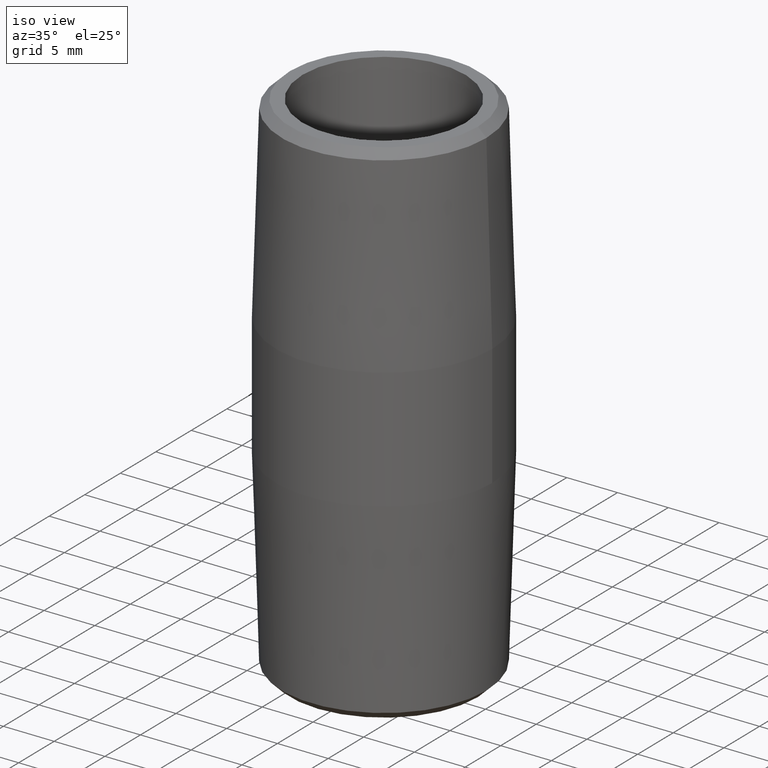
[diagram: clean part render]
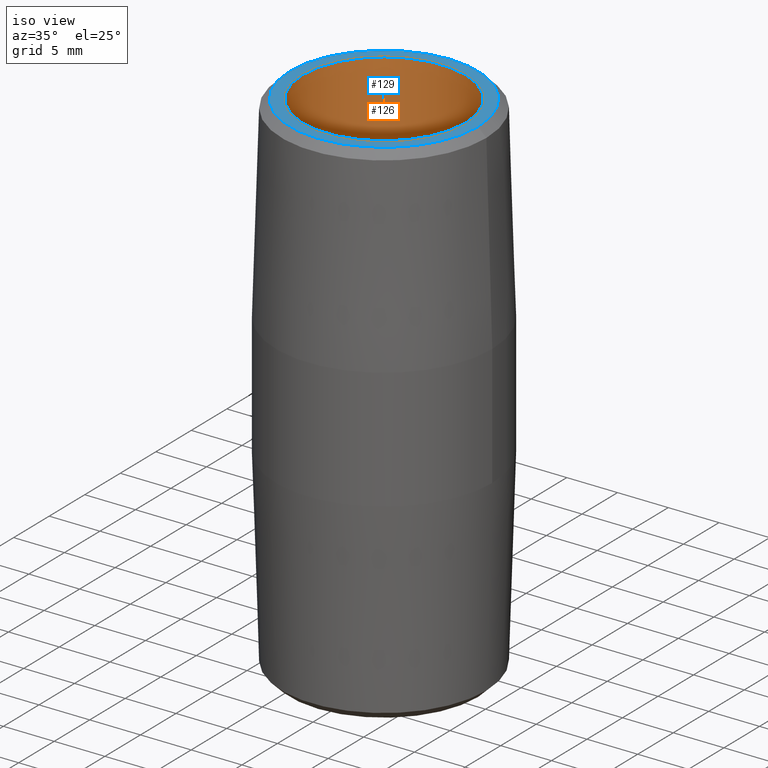
[diagram: same view with the hole feature highlighted: cylindrical wall and planar end face, labeled with their STEP entity ids]
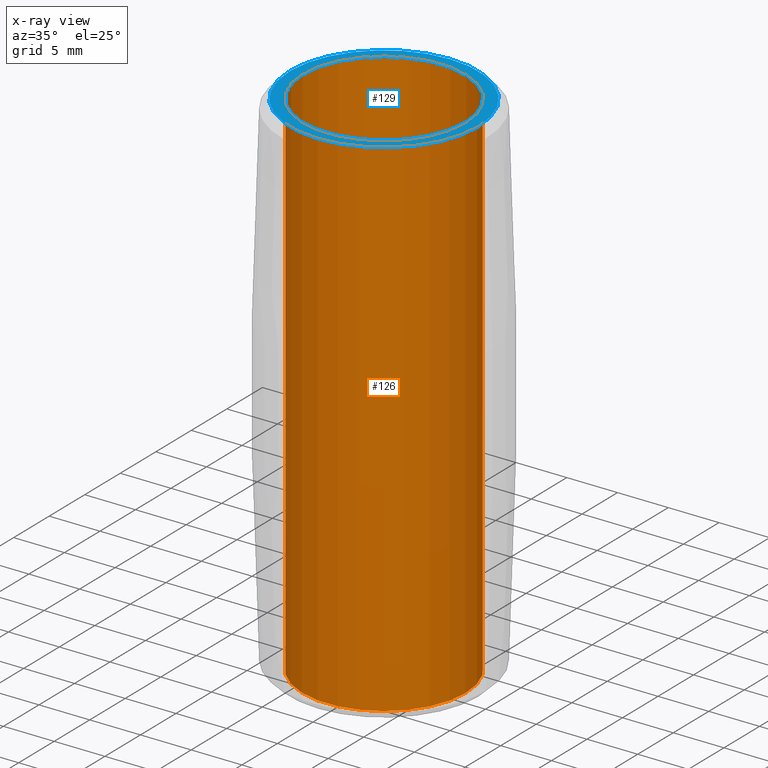
[diagram: x-ray of the same camera — body ghosted, the hole faces saturated]
A machine part, iso view. The highlighted faces form one hole feature of diameter 16.0528 mm: the cylindrical wall (entity #126, orange) and its adjacent planar end face (entity #129, blue) — they share a circular edge in the B-rep.
The next image is the same camera in x-ray (body ghosted, the hole faces saturated) — the bore reads through the body.
Wall:
#22=FACE_OUTER_BOUND('',#30,.T.);
#30=EDGE_LOOP('',(#85,#86,#87,#88));
#40=LINE('',#218,#46);
#46=VECTOR('',#177,0.316);
#52=CIRCLE('',#155,0.316);
#53=CIRCLE('',#156,0.316);
#61=VERTEX_POINT('',#215);
#62=VERTEX_POINT('',#217);
#70=EDGE_CURVE('',#61,#61,#52,.T.);
#71=EDGE_CURVE('',#61,#62,#40,.T.);
#72=EDGE_CURVE('',#62,#62,#53,.T.);
#85=ORIENTED_EDGE('',*,*,#70,.F.);
#86=ORIENTED_EDGE('',*,*,#71,.T.);
#87=ORIENTED_EDGE('',*,*,#72,.F.);
#88=ORIENTED_EDGE('',*,*,#71,.F.);
#115=CYLINDRICAL_SURFACE('',#154,0.316);
#126=ADVANCED_FACE('',(#22),#115,.F.);
#154=AXIS2_PLACEMENT_3D('',#214,#173,#174);
#155=AXIS2_PLACEMENT_3D('',#216,#175,#176);
#156=AXIS2_PLACEMENT_3D('',#219,#178,#179);
#173=DIRECTION('center_axis',(0.,0.,-1.));
#174=DIRECTION('ref_axis',(-1.,0.,0.));
#175=DIRECTION('center_axis',(0.,0.,-1.));
#176=DIRECTION('ref_axis',(-1.,0.,0.));
#177=DIRECTION('',(0.,0.,-1.));
#178=DIRECTION('center_axis',(0.,0.,1.));
#179=DIRECTION('ref_axis',(-1.,0.,0.));
#214=CARTESIAN_POINT('Origin',(0.,0.,1.));
#215=CARTESIAN_POINT('',(0.316,3.86988388530564E-17,1.));
#216=CARTESIAN_POINT('Origin',(0.,0.,1.));
#217=CARTESIAN_POINT('',(0.316,3.86975607807871E-17,-1.));
#218=CARTESIAN_POINT('',(0.316,-3.86988388530564E-17,1.));
#219=CARTESIAN_POINT('Origin',(0.,0.,-1.));
End face:
#14=FACE_BOUND('',#34,.T.);
#16=PLANE('',#162);
#25=FACE_OUTER_BOUND('',#33,.T.);
#33=EDGE_LOOP('',(#97));
#34=EDGE_LOOP('',(#98));
#52=CIRCLE('',#155,0.316);
#55=CIRCLE('',#159,0.364842555296348);
#61=VERTEX_POINT('',#215);
#64=VERTEX_POINT('',#223);
#70=EDGE_CURVE('',#61,#61,#52,.T.);
#75=EDGE_CURVE('',#64,#64,#55,.T.);
#97=ORIENTED_EDGE('',*,*,#75,.F.);
#98=ORIENTED_EDGE('',*,*,#70,.T.);
#129=ADVANCED_FACE('',(#25,#14),#16,.F.);
#155=AXIS2_PLACEMENT_3D('',#216,#175,#176);
#159=AXIS2_PLACEMENT_3D('',#225,#185,#186);
#162=AXIS2_PLACEMENT_3D('',#230,#192,#193);
#175=DIRECTION('center_axis',(0.,0.,-1.));
#176=DIRECTION('ref_axis',(-1.,0.,0.));
#185=DIRECTION('center_axis',(0.,0.,-1.));
#186=DIRECTION('ref_axis',(-1.,0.,0.));
#192=DIRECTION('center_axis',(0.,0.,-1.));
#193=DIRECTION('ref_axis',(-1.,0.,0.));
#215=CARTESIAN_POINT('',(0.316,3.86988388530564E-17,1.));
#216=CARTESIAN_POINT('Origin',(0.,0.,1.));
#223=CARTESIAN_POINT('',(0.364842555296348,-4.467885113607E-17,1.));
#225=CARTESIAN_POINT('Origin',(0.,0.,1.));
#230=CARTESIAN_POINT('Origin',(0.,0.,1.));